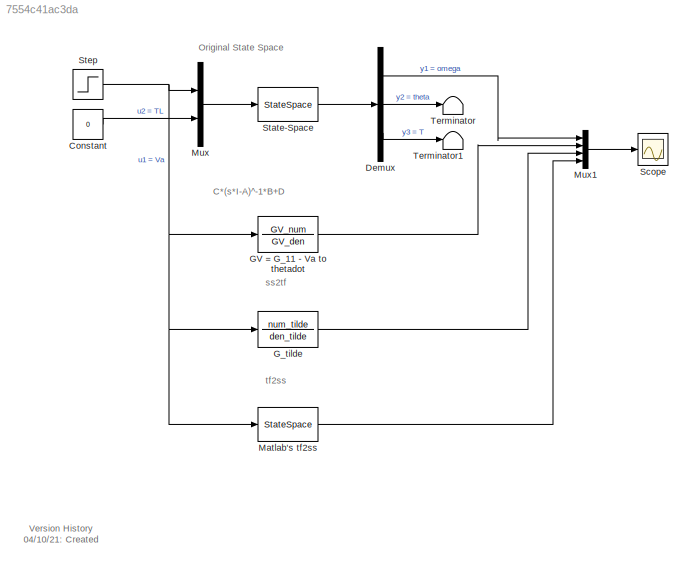
MODEL slx_7554c41ac3da
KIND model
CONFIG AbsTol = auto
CONFIG EnableMultiTasking = off
CONFIG FixedStep = auto
CONFIG MaxStep = auto
CONFIG MinStep = auto
CONFIG RelTol = 1e-3
CONFIG SampleTimeConstraint = Unconstrained
CONFIG Solver = VariableStepAuto
CONFIG SolverName = VariableStepAuto
CONFIG StartTime = 0.0
CONFIG StopTime = 10.0
BLOCK [Constant] Constant
  Value = 0
BLOCK [Demux] Demux
  DisplayOption = bar
  Outputs = 3
  Ports = [1, 3]
BLOCK [TransferFcn] GV = G_11 - Va to thetadot
  Denominator = GV_den
  Numerator = GV_num
BLOCK [TransferFcn] G_tilde
  Denominator = den_tilde
  Numerator = num_tilde
BLOCK [StateSpace] Matlab's tf2ss
  A = Atilde2
  B = Btilde2
  C = Ctilde2
  D = Dtilde2
  InitialCondition = 0
  Ports = [1, 1]
BLOCK [Mux] Mux
  DisplayOption = bar
  Inputs = 2
  Ports = [2, 1]
BLOCK [Mux] Mux1
  DisplayOption = bar
  Ports = [4, 1]
BLOCK [Scope] Scope
  Floating = off
  NumInputPorts = 1
  Ports = [1]
  ScopeSpecificationString = Simulink.scopes.TimeScopeBlockCfg('CurrentConfiguration', extmgr.ConfigurationSet(extmgr.Configuration('Core','General UI',true),extmgr.Configuration('Core','Source UI',true),extmgr.Configuration('Sources','WiredSimulink',true),extmgr.Configuration('Visuals','Time Domain',true,'SerializedDisplays',{struct('MinYLimReal','-1.19107','MaxYLimReal','10.71964','YLabelReal','','MinYLimMag','0.00000','Max...<+1446ch>
BLOCK [StateSpace] State-Space
  A = A
  B = B
  C = C
  D = D
  InitialCondition = 0
  Ports = [1, 1]
BLOCK [Step] Step
  SampleTime = 0
BLOCK [Terminator] Terminator
BLOCK [Terminator] Terminator1
ANNOTATION (root): C*(s*I-A)^-1*B+D
ANNOTATION (root): Original State Space
ANNOTATION (root): Version History 04/10/21: Created
ANNOTATION (root): ss2tf
ANNOTATION (root): tf2ss
LINE Constant:1 -> Mux:2
LINE Demux:1 -> Mux1:1
LINE Demux:2 -> Terminator:1
LINE Demux:3 -> Terminator1:1
LINE GV = G_11 - Va to thetadot:1 -> Mux1:2
LINE G_tilde:1 -> Mux1:3
LINE Matlab's tf2ss:1 -> Mux1:4
LINE Mux1:1 -> Scope:1
LINE Mux:1 -> State-Space:1
LINE State-Space:1 -> Demux:1
NET Step:1 -> GV = G_11 - Va to thetadot:1, G_tilde:1, Matlab's tf2ss:1, Mux:1
note: NET lines group one-source signal fan-out (src -> all destinations, sorted); 1:1 wires keep LINE
